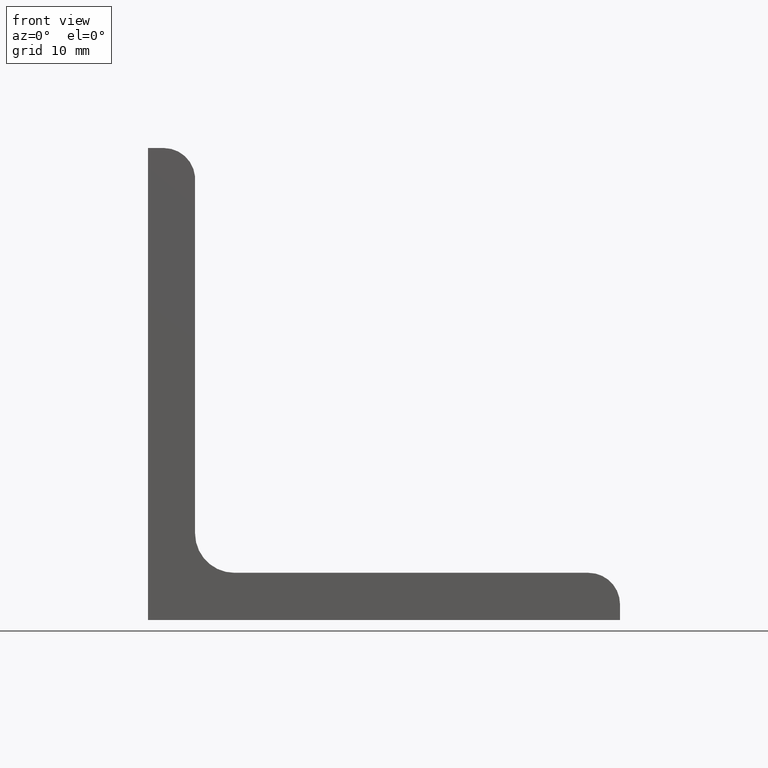
[diagram: clean part render]
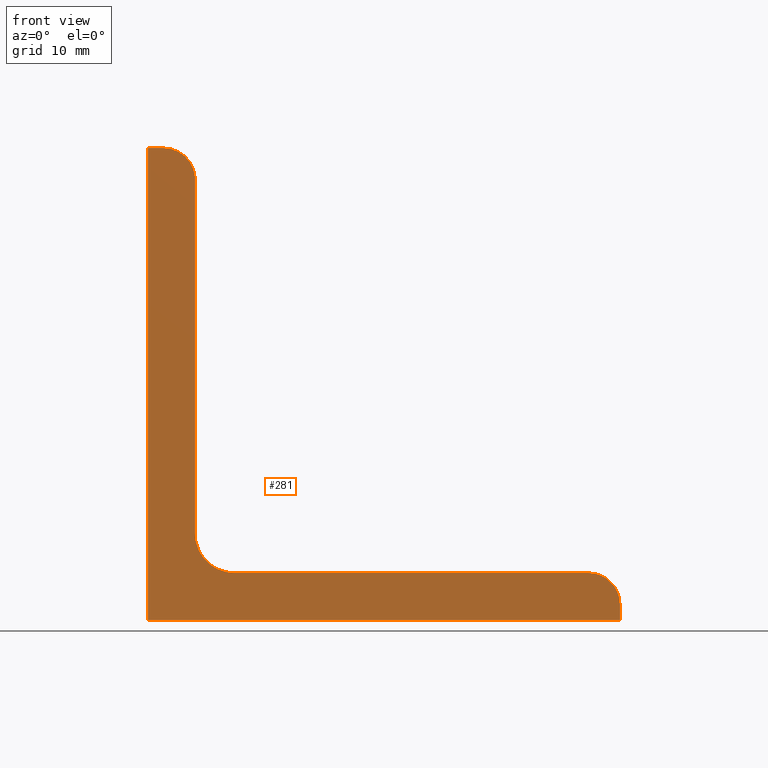
[diagram: same view with one face highlighted and labeled with its STEP entity id]
A machine part, front view. The second image highlights one B-rep face of the part: STEP entity #281.
In plain terms, the highlighted planar face has unit normal (0, -1, 0).
Its self-contained STEP definition (entity closure, byte-faithful):
#28=CIRCLE('',#291,3.99999753756174);
#32=CIRCLE('',#297,5.00378472891907);
#36=CIRCLE('',#303,4.00000026990974);
#58=FACE_OUTER_BOUND('',#81,.T.);
#81=EDGE_LOOP('',(#246,#247,#248,#249,#250,#251,#252,#253,#254));
#92=LINE('',#406,#113);
#97=LINE('',#419,#118);
#101=LINE('',#435,#122);
#105=LINE('',#451,#126);
#108=LINE('',#457,#129);
#109=LINE('',#463,#130);
#113=VECTOR('',#323,1.99998341995524);
#118=VECTOR('',#336,45.0133032110452);
#122=VECTOR('',#352,45.3656752245638);
#126=VECTOR('',#368,1.99999955599196);
#129=VECTOR('',#373,59.9999866697599);
#130=VECTOR('',#380,59.9999866797652);
#134=VERTEX_POINT('',#403);
#135=VERTEX_POINT('',#405);
#137=VERTEX_POINT('',#411);
#139=VERTEX_POINT('',#417);
#143=VERTEX_POINT('',#427);
#145=VERTEX_POINT('',#433);
#149=VERTEX_POINT('',#443);
#151=VERTEX_POINT('',#449);
#153=VERTEX_POINT('',#455);
#160=EDGE_CURVE('',#135,#134,#92,.T.);
#164=EDGE_CURVE('',#134,#137,#28,.T.);
#167=EDGE_CURVE('',#137,#139,#97,.T.);
#172=EDGE_CURVE('',#139,#143,#32,.T.);
#175=EDGE_CURVE('',#143,#145,#101,.T.);
#180=EDGE_CURVE('',#145,#149,#36,.T.);
#183=EDGE_CURVE('',#149,#151,#105,.T.);
#186=EDGE_CURVE('',#151,#153,#108,.T.);
#189=EDGE_CURVE('',#153,#135,#109,.T.);
#246=ORIENTED_EDGE('',*,*,#160,.T.);
#247=ORIENTED_EDGE('',*,*,#164,.T.);
#248=ORIENTED_EDGE('',*,*,#167,.T.);
#249=ORIENTED_EDGE('',*,*,#172,.T.);
#250=ORIENTED_EDGE('',*,*,#175,.T.);
#251=ORIENTED_EDGE('',*,*,#180,.T.);
#252=ORIENTED_EDGE('',*,*,#183,.T.);
#253=ORIENTED_EDGE('',*,*,#186,.T.);
#254=ORIENTED_EDGE('',*,*,#189,.T.);
#270=PLANE('',#312);
#281=ADVANCED_FACE('',(#58),#270,.T.);
#291=AXIS2_PLACEMENT_3D('',#413,#330,#331);
#297=AXIS2_PLACEMENT_3D('',#429,#346,#347);
#303=AXIS2_PLACEMENT_3D('',#445,#362,#363);
#312=AXIS2_PLACEMENT_3D('',#470,#388,#389);
#323=DIRECTION('',(0.,0.,1.));
#330=DIRECTION('center_axis',(0.,-1.,0.));
#331=DIRECTION('ref_axis',(0.,0.,1.));
#336=DIRECTION('',(-1.,0.,0.));
#346=DIRECTION('center_axis',(0.,1.,0.));
#347=DIRECTION('ref_axis',(-1.,0.,0.));
#352=DIRECTION('',(0.,0.,1.));
#362=DIRECTION('center_axis',(0.,-1.,0.));
#363=DIRECTION('ref_axis',(1.,0.,0.));
#368=DIRECTION('',(-1.,0.,0.));
#373=DIRECTION('',(0.,0.,-1.));
#380=DIRECTION('',(1.,0.,0.));
#388=DIRECTION('center_axis',(0.,-1.,0.));
#389=DIRECTION('ref_axis',(0.,0.,-1.));
#403=CARTESIAN_POINT('',(59.9999866797361,-19.,1.99998341995524));
#405=CARTESIAN_POINT('',(59.9999866797652,-19.,-1.163414E-15));
#406=CARTESIAN_POINT('',(59.9999866797652,-19.,-1.163414E-15));
#411=CARTESIAN_POINT('',(55.9999891421744,-19.,5.99998095754563));
#413=CARTESIAN_POINT('Origin',(55.9999891421744,-19.,1.99998341998389));
#417=CARTESIAN_POINT('',(10.9866859311292,-19.,5.99998095754563));
#419=CARTESIAN_POINT('',(55.9999891421744,-19.,5.99998095754563));
#427=CARTESIAN_POINT('',(5.98290120221009,-19.,11.0037656864647));
#429=CARTESIAN_POINT('Origin',(10.9866859311292,-19.,11.0037656864647));
#433=CARTESIAN_POINT('',(5.98290120221009,-19.,56.3694409110285));
#435=CARTESIAN_POINT('',(5.98290120221009,-19.,11.0037656864647));
#443=CARTESIAN_POINT('',(1.99999955599196,-19.,59.9999866697599));
#445=CARTESIAN_POINT('Origin',(1.99999955599196,-19.,55.99998639985));
#449=CARTESIAN_POINT('',(0.,-19.,59.9999866697599));
#451=CARTESIAN_POINT('',(1.99999955599196,-19.,59.9999866697599));
#455=CARTESIAN_POINT('',(0.,-19.,-1.163414E-15));
#457=CARTESIAN_POINT('',(0.,-19.,59.9999866697599));
#463=CARTESIAN_POINT('',(0.,-19.,-1.163414E-15));
#470=CARTESIAN_POINT('Origin',(-6.00000340310681,-19.,-6.00000340197266));